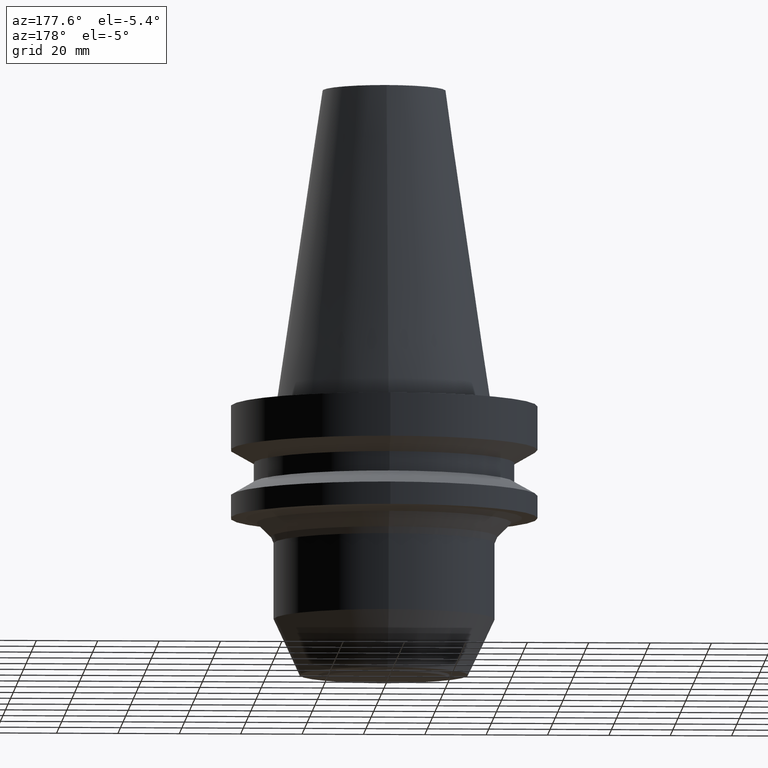
[diagram: clean part render]
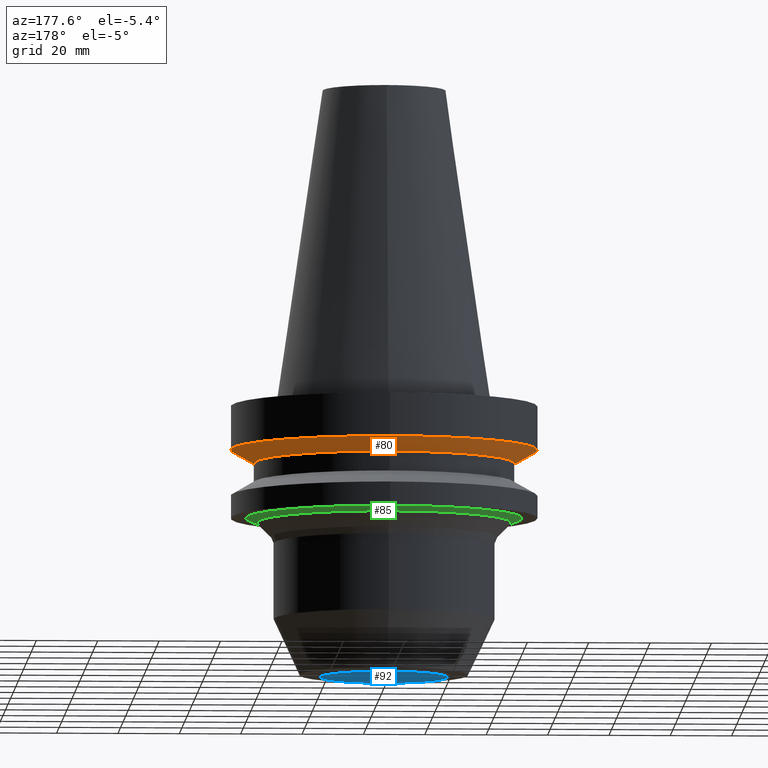
[diagram: same view with three faces highlighted in distinct colors, each labeled with its STEP entity id]
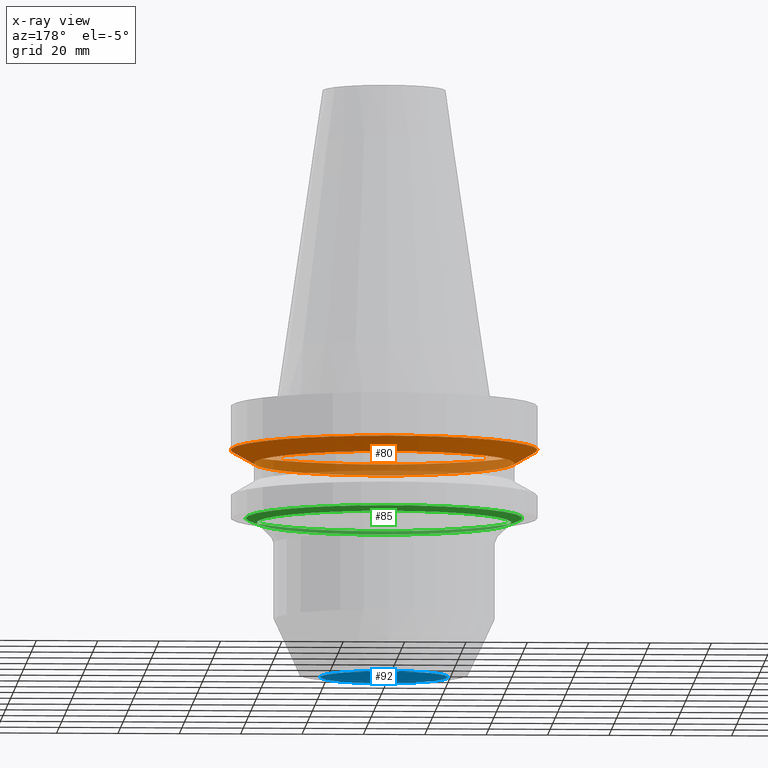
[diagram: x-ray of the same camera — body ghosted, the three highlighted faces saturated]
A machine part, auxiliary view with three faces highlighted in distinct colors.
The next image is the same camera in x-ray (body ghosted, the three faces saturated) — at least one of them is partly hidden behind the body in this view.
Their STEP definitions:

[orange] entity #80 — the highlighted conical surface has half-angle 60 deg.
#80=ADVANCED_FACE('',(#108,#109),#110,.T.);
#108=FACE_BOUND('',#160,.T.);
#109=FACE_BOUND('',#161,.T.);
#110=CONICAL_SURFACE('',#162,46.25,1.0471975511966);
#160=EDGE_LOOP('',(#222));
#161=EDGE_LOOP('',(#223));
#162=AXIS2_PLACEMENT_3D('',#224,#225,#226);
#222=ORIENTED_EDGE('',*,*,#291,.F.);
#223=ORIENTED_EDGE('',*,*,#290,.T.);
#224=CARTESIAN_POINT('',(1.09391964217128E-015,2.18783928434257E-015,-17.8650635094611));
#225=DIRECTION('',(-6.12323399573677E-017,-1.22464679914748E-016,1.0));
#226=DIRECTION('',(-1.23259516440783E-032,1.0,1.22464679914748E-016));
#290=EDGE_CURVE('',#311,#311,#312,.T.);
#291=EDGE_CURVE('',#313,#313,#314,.T.);
#311=VERTEX_POINT('',#345);
#312=CIRCLE('',#346,50.0);
#313=VERTEX_POINT('',#347);
#314=CIRCLE('',#348,42.5);
#345=CARTESIAN_POINT('',(9.61347737330669E-016,50.0,-15.7));
#346=AXIS2_PLACEMENT_3D('',#383,#384,#385);
#347=CARTESIAN_POINT('',(1.2264915470119E-015,42.5,-20.0301270189222));
#348=AXIS2_PLACEMENT_3D('',#386,#387,#388);
#383=CARTESIAN_POINT('',(9.6134773733067E-016,1.92269547466134E-015,-15.7));
#384=DIRECTION('',(6.12323399573677E-017,1.22464679914736E-016,-1.0));
#385=DIRECTION('',(-1.23259516440783E-032,1.0,1.22464679914736E-016));
#386=CARTESIAN_POINT('',(1.2264915470119E-015,2.4529830940238E-015,-20.0301270189222));
#387=DIRECTION('',(6.12323399573677E-017,1.22464679914763E-016,-1.0));
#388=DIRECTION('',(-1.23259516440783E-032,1.0,1.22464679914763E-016));

[blue] entity #92 — the highlighted planar face has unit normal (0, -0, -1).
#92=ADVANCED_FACE('',(#144),#145,.T.);
#144=FACE_OUTER_BOUND('',#196,.T.);
#145=PLANE('',#197);
#196=EDGE_LOOP('',(#282));
#197=AXIS2_PLACEMENT_3D('',#283,#284,#285);
#282=ORIENTED_EDGE('',*,*,#302,.T.);
#283=CARTESIAN_POINT('',(5.51091059616291E-015,10.3999999999984,-89.9999999999971));
#284=DIRECTION('',(6.12323399573677E-017,-1.62746753760901E-014,-1.0));
#285=DIRECTION('',(9.9170930259378E-031,1.0,-1.62746753760901E-014));
#302=EDGE_CURVE('',#335,#335,#336,.T.);
#335=VERTEX_POINT('',#369);
#336=CIRCLE('',#370,20.7999999999968);
#369=CARTESIAN_POINT('',(5.51091059616292E-015,20.7999999999968,-89.9999999999972));
#370=AXIS2_PLACEMENT_3D('',#419,#420,#421);
#419=CARTESIAN_POINT('',(5.51091059616292E-015,1.10218211923258E-014,-89.9999999999972));
#420=DIRECTION('',(6.12323399573677E-017,1.22464679914748E-016,-1.0));
#421=DIRECTION('',(-1.23259516440776E-032,1.0,1.22464679914748E-016));

[green] entity #85 — the highlighted conical surface has half-angle 67.5 deg.
#85=ADVANCED_FACE('',(#123,#124),#125,.T.);
#123=FACE_BOUND('',#175,.T.);
#124=FACE_BOUND('',#176,.T.);
#125=CONICAL_SURFACE('',#177,43.3033008588994,1.17809724509612);
#175=EDGE_LOOP('',(#247));
#176=EDGE_LOOP('',(#248));
#177=AXIS2_PLACEMENT_3D('',#249,#250,#251);
#247=ORIENTED_EDGE('',*,*,#296,.F.);
#248=ORIENTED_EDGE('',*,*,#295,.T.);
#249=CARTESIAN_POINT('',(2.37166526124396E-015,4.74333052248792E-015,-38.7322330470338));
#250=DIRECTION('',(-6.12323399573677E-017,-1.22464679914772E-016,1.0));
#251=DIRECTION('',(-1.23259516440777E-032,1.0,1.22464679914772E-016));
#295=EDGE_CURVE('',#321,#321,#322,.T.);
#296=EDGE_CURVE('',#323,#323,#324,.T.);
#321=VERTEX_POINT('',#355);
#322=CIRCLE('',#356,45.0710678118657);
#323=VERTEX_POINT('',#357);
#324=CIRCLE('',#358,41.535533905933);
#355=CARTESIAN_POINT('',(2.32682891837997E-015,45.0710678118657,-38.0));
#356=AXIS2_PLACEMENT_3D('',#398,#399,#400);
#357=CARTESIAN_POINT('',(2.41650160410795E-015,41.535533905933,-39.4644660940675));
#358=AXIS2_PLACEMENT_3D('',#401,#402,#403);
#398=CARTESIAN_POINT('',(2.32682891837997E-015,4.65365783675995E-015,-38.0));
#399=DIRECTION('',(6.12323399573677E-017,1.22464679914754E-016,-1.0));
#400=DIRECTION('',(-1.23259516440776E-032,1.0,1.22464679914754E-016));
#401=CARTESIAN_POINT('',(2.41650160410795E-015,4.8330032082159E-015,-39.4644660940675));
#402=DIRECTION('',(6.12323399573677E-017,1.22464679914713E-016,-1.0));
#403=DIRECTION('',(-1.23259516440779E-032,1.0,1.22464679914713E-016));